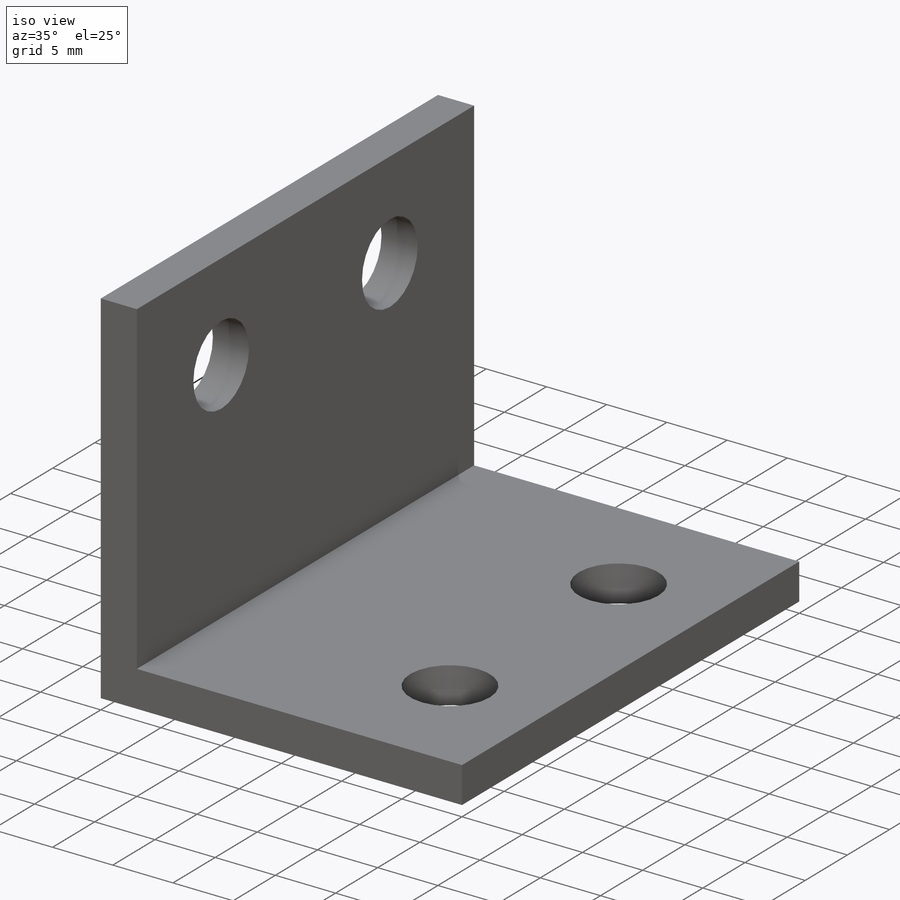
[diagram: iso view]
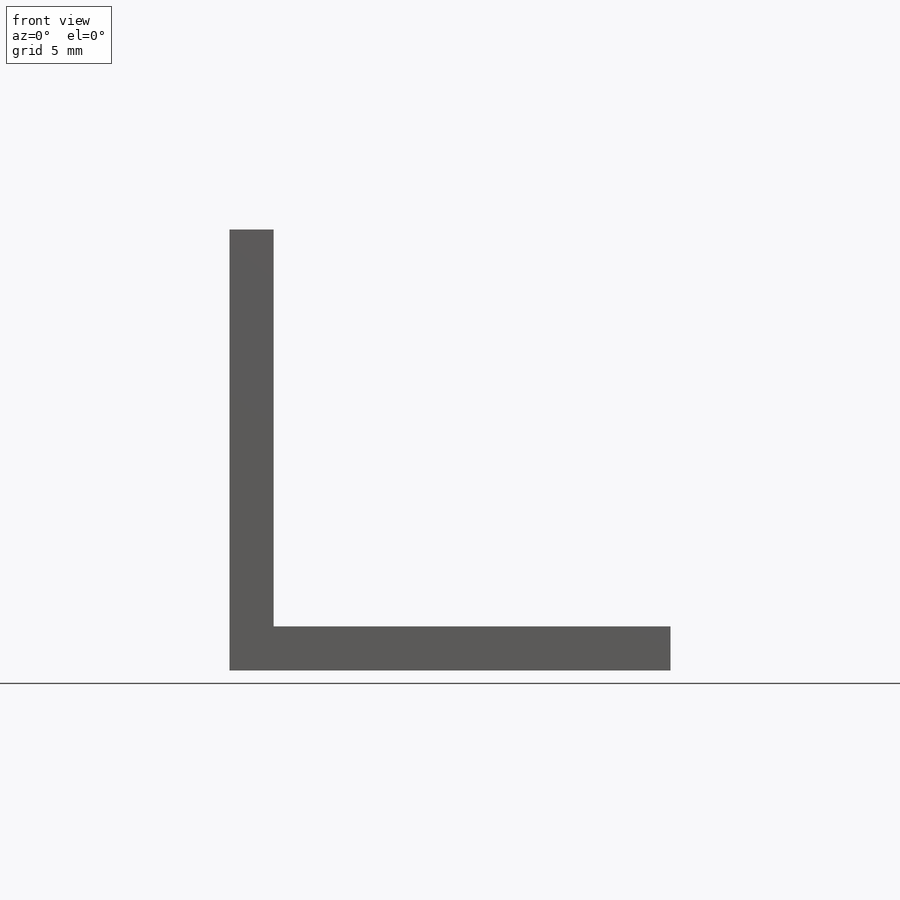
[diagram: front view]
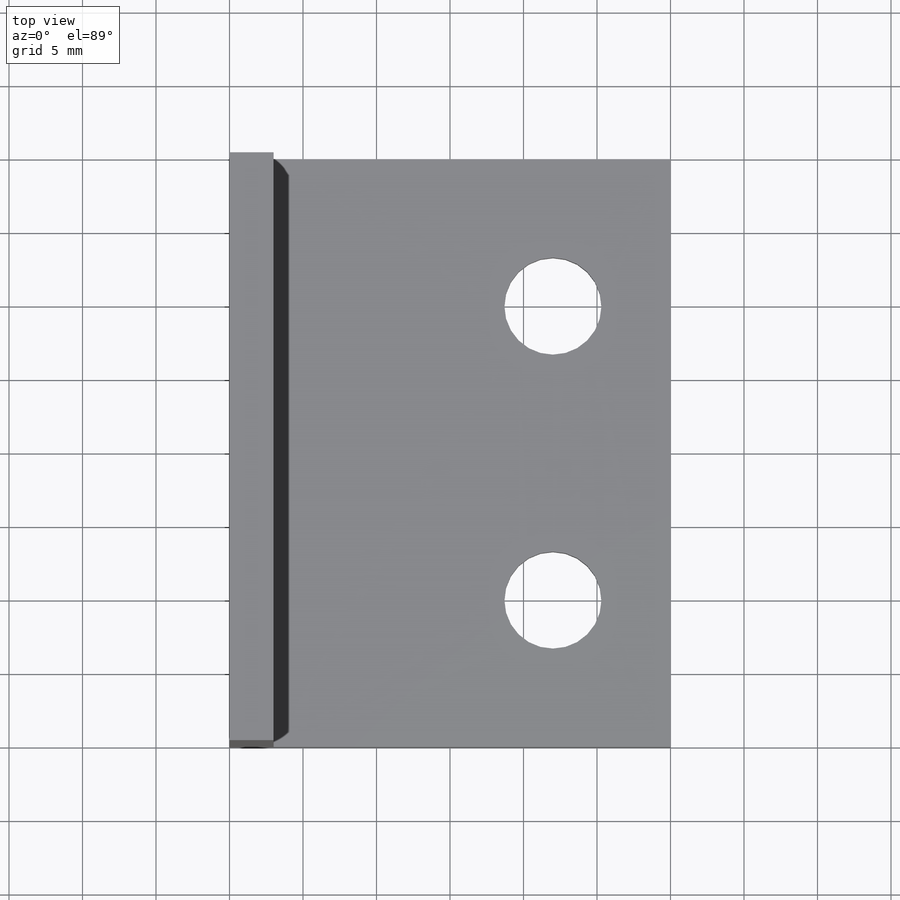
[diagram: top view]
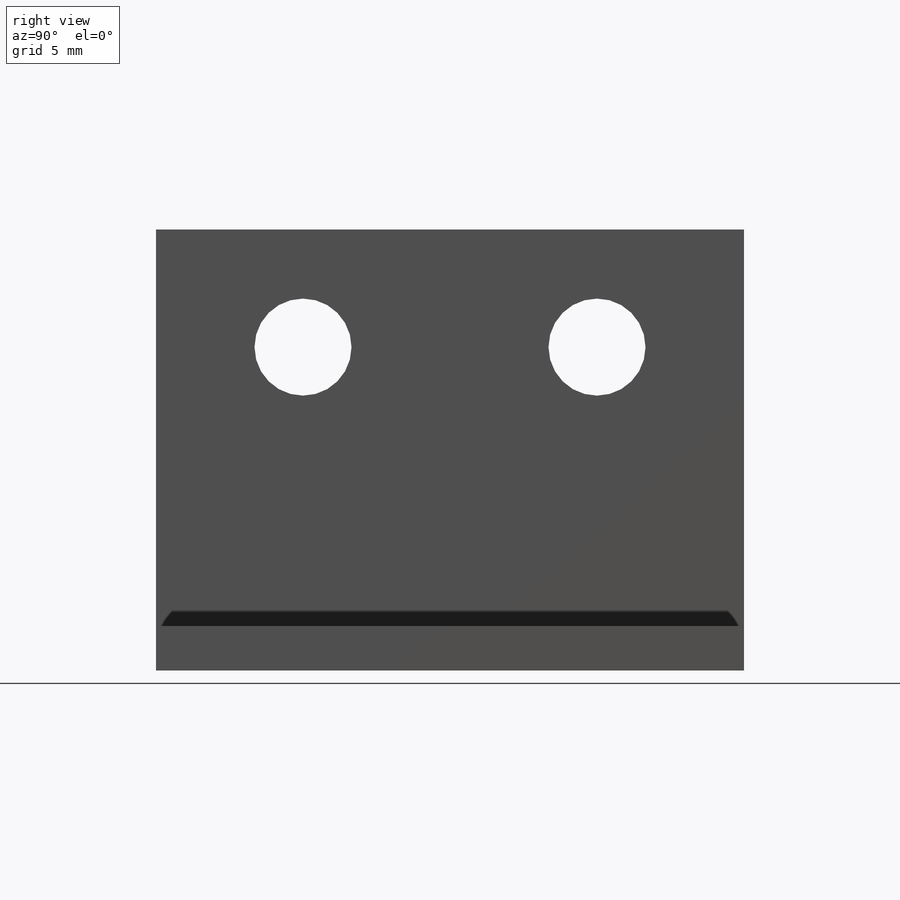
[diagram: right view]
SOLIDWORKS PART (.sldprt)
format: sldprt  version: not decoded by parser v0  size: 198,144 bytes
history: native  units: mm
features: plane x3, sketch x3, cut_extrude x2, material x1, extrude x1 (+10 scaffold rows collapsed)
feature tree (20):
  scaffold x10  (default folders/planes/origin — collapsed)
  material  "1.0503 (C45)"
  plane  "前视基准面"
  plane  "上视基准面"
  plane  "右视基准面"
  sketch  "草图1"  dims[D1=3.0mm D2=3.0mm D3=30.0mm D4=30.0mm]
  extrude  "凸台-拉伸1"  Depth=40mm
  sketch  "草图2"  dims[D1=~0.439355mm D2=10.0mm D3=8.0mm]
  cut_extrude  "切除-拉伸1"  Depth=40mm
  sketch  "草图3"  dims[c1.D1=6.6mm c1.D3=6.6mm c2.D1=~15.745606mm c2.D2=10.0mm c2.D3=8.0mm]
  cut_extrude  "切除-拉伸2"  Depth=40mm
decode coverage: 6 of 6 modeling features carry decoded parameters
note: ~ marks probable driven/reference dimensions
note: suppression state not decoded; provenance and decode notes live in map.json
